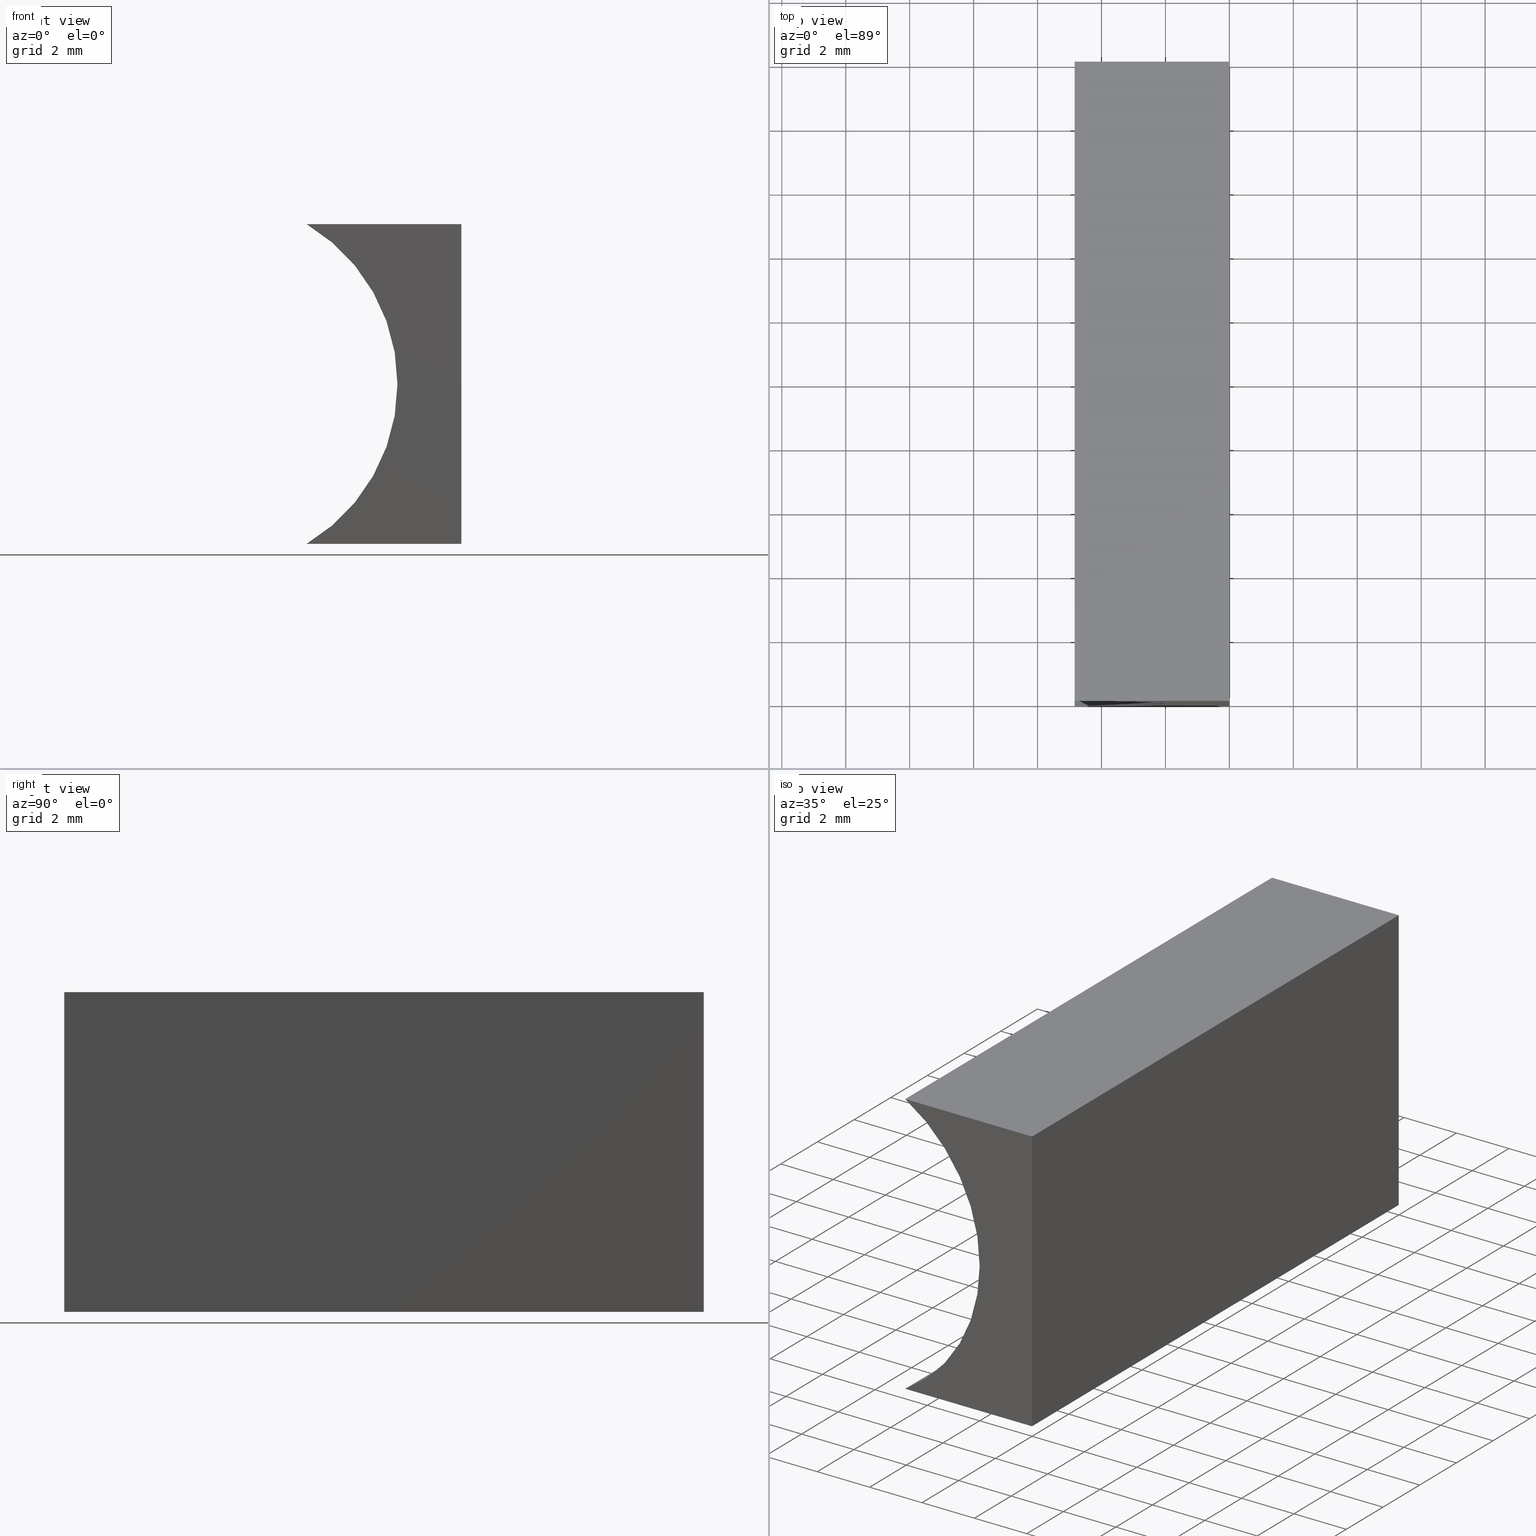
[diagram: canonical four-view strip — front | top / right | iso, engineering-drawing reading convention]
A machine part, canonical four-view strip (front | top / right | iso — engineering-drawing reading convention). The complete STEP part file that produces these views, byte-faithful:
ISO-10303-21;
HEADER;
FILE_DESCRIPTION (( 'STEP AP214' ),
    '1' );
FILE_NAME ('155475.STEP',
    '2019-07-03T07:11:49',
    ( 'user' ),
    ( '΢���й�' ),
    'SwSTEP 2.0',
    'SolidWorks 2016',
    '' );
FILE_SCHEMA (( 'AUTOMOTIVE_DESIGN' ));
ENDSEC;

DATA;
#1 = VECTOR ( 'NONE', #171, 1000.000000000000000 ) ;
#2 = ORIENTED_EDGE ( 'NONE', *, *, #113, .T. ) ;
#3 = DIRECTION ( 'NONE',  ( 0.0000000000000000000, 1.000000000000000000, 0.0000000000000000000 ) ) ;
#4 = LINE ( 'NONE', #170, #13 ) ;
#5 =( NAMED_UNIT ( * ) SI_UNIT ( $, .STERADIAN. ) SOLID_ANGLE_UNIT ( ) );
#6 = APPLICATION_CONTEXT ( 'automotive_design' ) ;
#7 = DIRECTION ( 'NONE',  ( 0.0000000000000000000, 1.000000000000000000, 0.0000000000000000000 ) ) ;
#8 = MECHANICAL_DESIGN_GEOMETRIC_PRESENTATION_REPRESENTATION (  '', ( #20 ), #145 ) ;
#9 = ADVANCED_FACE ( 'NONE', ( #175 ), #50, .F. ) ;
#10 = FACE_OUTER_BOUND ( 'NONE', #147, .T. ) ;
#11 = DIRECTION ( 'NONE',  ( -0.0000000000000000000, -1.000000000000000000, -0.0000000000000000000 ) ) ;
#12 = DIRECTION ( 'NONE',  ( -0.0000000000000000000, -1.000000000000000000, -0.0000000000000000000 ) ) ;
#13 = VECTOR ( 'NONE', #94, 1000.000000000000000 ) ;
#14 = EDGE_CURVE ( 'NONE', #24, #46, #174, .T. ) ;
#15 = AXIS2_PLACEMENT_3D ( 'NONE', #132, #7, #120 ) ;
#16 = EDGE_LOOP ( 'NONE', ( #139, #202, #199, #27 ) ) ;
#17 = ORIENTED_EDGE ( 'NONE', *, *, #48, .F. ) ;
#18 =( LENGTH_UNIT ( ) NAMED_UNIT ( * ) SI_UNIT ( .MILLI., .METRE. ) );
#19 = PRODUCT_DEFINITION_CONTEXT ( 'detailed design', #6, 'design' ) ;
#20 = STYLED_ITEM ( 'NONE', ( #129 ), #191 ) ;
#21 = VERTEX_POINT ( 'NONE', #65 ) ;
#22 = CARTESIAN_POINT ( 'NONE',  ( -7.819999999999993200, 20.00000000000000000, 5.000000000000001800 ) ) ;
#23 = ORIENTED_EDGE ( 'NONE', *, *, #73, .T. ) ;
#24 = VERTEX_POINT ( 'NONE', #78 ) ;
#25 = CARTESIAN_POINT ( 'NONE',  ( 6.123233995736766300E-016, 0.0000000000000000000, 10.00000000000000000 ) ) ;
#26 = DIRECTION ( 'NONE',  ( 0.0000000000000000000, 0.0000000000000000000, -1.000000000000000000 ) ) ;
#27 = ORIENTED_EDGE ( 'NONE', *, *, #130, .T. ) ;
#28 = AXIS2_PLACEMENT_3D ( 'NONE', #176, #82, #39 ) ;
#29 =( NAMED_UNIT ( * ) PLANE_ANGLE_UNIT ( ) SI_UNIT ( $, .RADIAN. ) );
#30 = DIRECTION ( 'NONE',  ( -1.000000000000000000, 0.0000000000000000000, -3.583145472076385500E-016 ) ) ;
#31 = DIRECTION ( 'NONE',  ( -6.123233995736766000E-017, -0.0000000000000000000, -1.000000000000000000 ) ) ;
#32 = CARTESIAN_POINT ( 'NONE',  ( 6.123233995736766300E-016, 20.00000000000000000, 10.00000000000000000 ) ) ;
#33 = COLOUR_RGB ( '',1.000000000000000000, 1.000000000000000000, 1.000000000000000000 ) ;
#34 = FILL_AREA_STYLE ('',( #164 ) ) ;
#35 = AXIS2_PLACEMENT_3D ( 'NONE', #192, #12, #26 ) ;
#36 = ORIENTED_EDGE ( 'NONE', *, *, #63, .T. ) ;
#37 = PRESENTATION_LAYER_ASSIGNMENT (  '', '', ( #20 ) ) ;
#38 = DIRECTION ( 'NONE',  ( 0.0000000000000000000, 0.0000000000000000000, 1.000000000000000000 ) ) ;
#39 = DIRECTION ( 'NONE',  ( 0.0000000000000000000, 0.0000000000000000000, 1.000000000000000000 ) ) ;
#40 = ADVANCED_FACE ( 'NONE', ( #43 ), #75, .F. ) ;
#41 =( GEOMETRIC_REPRESENTATION_CONTEXT ( 3 ) GLOBAL_UNCERTAINTY_ASSIGNED_CONTEXT ( ( #45 ) ) GLOBAL_UNIT_ASSIGNED_CONTEXT ( ( #146, #74, #67 ) ) REPRESENTATION_CONTEXT ( 'NONE', 'WORKASPACE' ) );
#42 = AXIS2_PLACEMENT_3D ( 'NONE', #71, #3, #185 ) ;
#43 = FACE_OUTER_BOUND ( 'NONE', #16, .T. ) ;
#44 = PRODUCT_DEFINITION_FORMATION_WITH_SPECIFIED_SOURCE ( '�κ�', '', #167, .NOT_KNOWN. ) ;
#45 = UNCERTAINTY_MEASURE_WITH_UNIT (LENGTH_MEASURE( 1.000000000000000100E-005 ), #146, 'distance_accuracy_value', 'NONE');
#46 = VERTEX_POINT ( 'NONE', #25 ) ;
#47 = LINE ( 'NONE', #32, #168 ) ;
#48 = EDGE_CURVE ( 'NONE', #118, #46, #47, .T. ) ;
#49 = LINE ( 'NONE', #204, #159 ) ;
#50 = PLANE ( 'NONE',  #187 ) ;
#51 = ORIENTED_EDGE ( 'NONE', *, *, #63, .F. ) ;
#52 = PRODUCT_DEFINITION_SHAPE ( 'NONE', 'NONE',  #179 ) ;
#53 = ORIENTED_EDGE ( 'NONE', *, *, #135, .T. ) ;
#54 = UNCERTAINTY_MEASURE_WITH_UNIT (LENGTH_MEASURE( 1.000000000000000100E-005 ), #18, 'distance_accuracy_value', 'NONE');
#55 = CARTESIAN_POINT ( 'NONE',  ( 6.123233995736766300E-016, 20.00000000000000000, 10.00000000000000000 ) ) ;
#56 = PLANE ( 'NONE',  #42 ) ;
#57 = LINE ( 'NONE', #186, #1 ) ;
#58 = EDGE_CURVE ( 'NONE', #118, #21, #4, .T. ) ;
#59 = DIRECTION ( 'NONE',  ( -0.0000000000000000000, -1.000000000000000000, -0.0000000000000000000 ) ) ;
#60 = DIRECTION ( 'NONE',  ( -0.0000000000000000000, -1.000000000000000000, -0.0000000000000000000 ) ) ;
#61 = PRODUCT_RELATED_PRODUCT_CATEGORY ( 'part', '', ( #167 ) ) ;
#62 = ADVANCED_FACE ( 'NONE', ( #85 ), #154, .T. ) ;
#63 = EDGE_CURVE ( 'NONE', #169, #165, #188, .T. ) ;
#64 = VECTOR ( 'NONE', #31, 1000.000000000000000 ) ;
#65 = CARTESIAN_POINT ( 'NONE',  ( 0.0000000000000000000, 20.00000000000000000, 0.0000000000000000000 ) ) ;
#66 = SURFACE_STYLE_FILL_AREA ( #34 ) ;
#67 =( NAMED_UNIT ( * ) SI_UNIT ( $, .STERADIAN. ) SOLID_ANGLE_UNIT ( ) );
#68 = DIRECTION ( 'NONE',  ( 1.000000000000000000, 0.0000000000000000000, 0.0000000000000000000 ) ) ;
#69 = DIRECTION ( 'NONE',  ( 3.583145472076385500E-016, 0.0000000000000000000, -1.000000000000000000 ) ) ;
#70 = ORIENTED_EDGE ( 'NONE', *, *, #14, .F. ) ;
#71 = CARTESIAN_POINT ( 'NONE',  ( -7.819999999999993200, 0.0000000000000000000, 5.000000000000001800 ) ) ;
#72 = DIRECTION ( 'NONE',  ( -0.0000000000000000000, -1.000000000000000000, -0.0000000000000000000 ) ) ;
#73 = EDGE_CURVE ( 'NONE', #169, #76, #93, .T. ) ;
#74 =( NAMED_UNIT ( * ) PLANE_ANGLE_UNIT ( ) SI_UNIT ( $, .RADIAN. ) );
#75 = PLANE ( 'NONE',  #178 ) ;
#76 = VERTEX_POINT ( 'NONE', #166 ) ;
#77 = FACE_OUTER_BOUND ( 'NONE', #115, .T. ) ;
#78 = CARTESIAN_POINT ( 'NONE',  ( -4.841342584317565000, 0.0000000000000000000, 9.999999999999998200 ) ) ;
#79 = ORIENTED_EDGE ( 'NONE', *, *, #58, .T. ) ;
#80 = AXIS2_PLACEMENT_3D ( 'NONE', #108, #69, #30 ) ;
#81 = CARTESIAN_POINT ( 'NONE',  ( 0.0000000000000000000, 0.0000000000000000000, 0.0000000000000000000 ) ) ;
#82 = DIRECTION ( 'NONE',  ( -0.0000000000000000000, -1.000000000000000000, -0.0000000000000000000 ) ) ;
#83 = DIRECTION ( 'NONE',  ( 3.583145472076385500E-016, -0.0000000000000000000, 1.000000000000000000 ) ) ;
#84 = CARTESIAN_POINT ( 'NONE',  ( -4.841342584317566800, 20.00000000000000000, 2.602085213965210600E-015 ) ) ;
#85 = FACE_OUTER_BOUND ( 'NONE', #133, .T. ) ;
#86 = CARTESIAN_POINT ( 'NONE',  ( 0.0000000000000000000, 20.00000000000000000, 0.0000000000000000000 ) ) ;
#87 = CIRCLE ( 'NONE', #28, 5.819999999999991400 ) ;
#88 = CARTESIAN_POINT ( 'NONE',  ( 0.0000000000000000000, 20.00000000000000000, 0.0000000000000000000 ) ) ;
#89 = LINE ( 'NONE', #55, #177 ) ;
#90 = EDGE_LOOP ( 'NONE', ( #156, #114, #70, #111 ) ) ;
#91 = DIRECTION ( 'NONE',  ( 1.000000000000000000, -0.0000000000000000000, 3.583145472076385000E-016 ) ) ;
#92 = CARTESIAN_POINT ( 'NONE',  ( 6.123233995736766300E-016, 20.00000000000000000, 10.00000000000000000 ) ) ;
#93 = LINE ( 'NONE', #163, #144 ) ;
#94 = DIRECTION ( 'NONE',  ( -6.123233995736766000E-017, -0.0000000000000000000, -1.000000000000000000 ) ) ;
#95 = ORIENTED_EDGE ( 'NONE', *, *, #142, .T. ) ;
#96 = CARTESIAN_POINT ( 'NONE',  ( -4.841342584317565000, 20.00000000000000000, 9.999999999999998200 ) ) ;
#97 = SURFACE_SIDE_STYLE ('',( #66 ) ) ;
#98 = CLOSED_SHELL ( 'NONE', ( #40, #127, #197, #9, #62, #143 ) ) ;
#99 = ORIENTED_EDGE ( 'NONE', *, *, #58, .F. ) ;
#100 = APPLICATION_PROTOCOL_DEFINITION ( 'draft international standard', 'automotive_design', 1998, #6 ) ;
#101 = PLANE ( 'NONE',  #80 ) ;
#102 = STYLED_ITEM ( 'NONE', ( #148 ), #150 ) ;
#103 = ORIENTED_EDGE ( 'NONE', *, *, #119, .F. ) ;
#104 = DIRECTION ( 'NONE',  ( -1.000000000000000000, 0.0000000000000000000, 3.583145472076385000E-016 ) ) ;
#105 = PRESENTATION_LAYER_ASSIGNMENT (  '', '', ( #102 ) ) ;
#106 = SURFACE_STYLE_USAGE ( .BOTH. , #128 ) ;
#107 = FILL_AREA_STYLE_COLOUR ( '', #161 ) ;
#108 = CARTESIAN_POINT ( 'NONE',  ( 6.123233995736766300E-016, 20.00000000000000000, 10.00000000000000000 ) ) ;
#109 = UNCERTAINTY_MEASURE_WITH_UNIT (LENGTH_MEASURE( 1.000000000000000100E-005 ), #183, 'distance_accuracy_value', 'NONE');
#110 = DIRECTION ( 'NONE',  ( -0.0000000000000000000, -1.000000000000000000, -0.0000000000000000000 ) ) ;
#111 = ORIENTED_EDGE ( 'NONE', *, *, #113, .F. ) ;
#112 = VECTOR ( 'NONE', #59, 1000.000000000000000 ) ;
#113 = EDGE_CURVE ( 'NONE', #76, #24, #87, .T. ) ;
#114 = ORIENTED_EDGE ( 'NONE', *, *, #157, .F. ) ;
#115 = EDGE_LOOP ( 'NONE', ( #117, #17, #103, #53 ) ) ;
#116 = CARTESIAN_POINT ( 'NONE',  ( 0.0000000000000000000, 0.0000000000000000000, 0.0000000000000000000 ) ) ;
#117 = ORIENTED_EDGE ( 'NONE', *, *, #14, .T. ) ;
#118 = VERTEX_POINT ( 'NONE', #92 ) ;
#119 = EDGE_CURVE ( 'NONE', #165, #118, #89, .T. ) ;
#120 = DIRECTION ( 'NONE',  ( 0.0000000000000000000, -0.0000000000000000000, 1.000000000000000000 ) ) ;
#121 = CARTESIAN_POINT ( 'NONE',  ( 0.0000000000000000000, 0.0000000000000000000, 0.0000000000000000000 ) ) ;
#122 =( NAMED_UNIT ( * ) SI_UNIT ( $, .STERADIAN. ) SOLID_ANGLE_UNIT ( ) );
#123 = CARTESIAN_POINT ( 'NONE',  ( 6.123233995736766300E-016, 0.0000000000000000000, 10.00000000000000000 ) ) ;
#124 = DIRECTION ( 'NONE',  ( 1.000000000000000000, -0.0000000000000000000, 3.583145472076385000E-016 ) ) ;
#125 = EDGE_CURVE ( 'NONE', #201, #76, #57, .T. ) ;
#126 = APPLICATION_CONTEXT ( 'automotive_design' ) ;
#127 = ADVANCED_FACE ( 'NONE', ( #10 ), #181, .F. ) ;
#128 = SURFACE_SIDE_STYLE ('',( #196 ) ) ;
#129 = PRESENTATION_STYLE_ASSIGNMENT (( #158 ) ) ;
#130 = EDGE_CURVE ( 'NONE', #21, #201, #134, .T. ) ;
#131 = DIRECTION ( 'NONE',  ( -1.000000000000000000, 0.0000000000000000000, 6.123233995736766000E-017 ) ) ;
#132 = CARTESIAN_POINT ( 'NONE',  ( -7.819999999999993200, 20.00000000000000000, 5.000000000000001800 ) ) ;
#133 = EDGE_LOOP ( 'NONE', ( #95, #36, #160, #79 ) ) ;
#134 = LINE ( 'NONE', #151, #138 ) ;
#135 = EDGE_CURVE ( 'NONE', #165, #24, #200, .T. ) ;
#136 = ORIENTED_EDGE ( 'NONE', *, *, #135, .F. ) ;
#137 = DIRECTION ( 'NONE',  ( 6.123233995736766000E-017, 0.0000000000000000000, 1.000000000000000000 ) ) ;
#138 = VECTOR ( 'NONE', #60, 1000.000000000000000 ) ;
#139 = ORIENTED_EDGE ( 'NONE', *, *, #125, .T. ) ;
#140 = MECHANICAL_DESIGN_GEOMETRIC_PRESENTATION_REPRESENTATION (  '', ( #102 ), #41 ) ;
#141 = FILL_AREA_STYLE ('',( #107 ) ) ;
#142 = EDGE_CURVE ( 'NONE', #21, #169, #49, .T. ) ;
#143 = ADVANCED_FACE ( 'NONE', ( #180 ), #56, .F. ) ;
#144 = VECTOR ( 'NONE', #72, 1000.000000000000000 ) ;
#145 =( GEOMETRIC_REPRESENTATION_CONTEXT ( 3 ) GLOBAL_UNCERTAINTY_ASSIGNED_CONTEXT ( ( #109 ) ) GLOBAL_UNIT_ASSIGNED_CONTEXT ( ( #183, #29, #122 ) ) REPRESENTATION_CONTEXT ( 'NONE', 'WORKASPACE' ) );
#146 =( LENGTH_UNIT ( ) NAMED_UNIT ( * ) SI_UNIT ( .MILLI., .METRE. ) );
#147 = EDGE_LOOP ( 'NONE', ( #2, #136, #51, #23 ) ) ;
#148 = PRESENTATION_STYLE_ASSIGNMENT (( #106 ) ) ;
#149 = DIRECTION ( 'NONE',  ( 0.0000000000000000000, 0.0000000000000000000, 1.000000000000000000 ) ) ;
#150 = ADVANCED_BREP_SHAPE_REPRESENTATION ( '155475', ( #191, #194 ), #162 ) ;
#151 = CARTESIAN_POINT ( 'NONE',  ( 0.0000000000000000000, 20.00000000000000000, 0.0000000000000000000 ) ) ;
#152 = LINE ( 'NONE', #121, #64 ) ;
#153 = EDGE_LOOP ( 'NONE', ( #195, #198, #99, #182 ) ) ;
#154 = PLANE ( 'NONE',  #15 ) ;
#155 =( NAMED_UNIT ( * ) PLANE_ANGLE_UNIT ( ) SI_UNIT ( $, .RADIAN. ) );
#156 = ORIENTED_EDGE ( 'NONE', *, *, #125, .F. ) ;
#157 = EDGE_CURVE ( 'NONE', #46, #201, #152, .T. ) ;
#158 = SURFACE_STYLE_USAGE ( .BOTH. , #97 ) ;
#159 = VECTOR ( 'NONE', #104, 1000.000000000000000 ) ;
#160 = ORIENTED_EDGE ( 'NONE', *, *, #119, .T. ) ;
#161 = COLOUR_RGB ( '',1.000000000000000000, 1.000000000000000000, 1.000000000000000000 ) ;
#162 =( GEOMETRIC_REPRESENTATION_CONTEXT ( 3 ) GLOBAL_UNCERTAINTY_ASSIGNED_CONTEXT ( ( #54 ) ) GLOBAL_UNIT_ASSIGNED_CONTEXT ( ( #18, #155, #5 ) ) REPRESENTATION_CONTEXT ( 'NONE', 'WORKASPACE' ) );
#163 = CARTESIAN_POINT ( 'NONE',  ( -4.841342584317566800, 20.00000000000000000, 2.602085213965210600E-015 ) ) ;
#164 = FILL_AREA_STYLE_COLOUR ( '', #33 ) ;
#165 = VERTEX_POINT ( 'NONE', #96 ) ;
#166 = CARTESIAN_POINT ( 'NONE',  ( -4.841342584317566800, 0.0000000000000000000, 2.602085213965210600E-015 ) ) ;
#167 = PRODUCT ( '155475', '155475', '', ( #189 ) ) ;
#168 = VECTOR ( 'NONE', #110, 1000.000000000000000 ) ;
#169 = VERTEX_POINT ( 'NONE', #84 ) ;
#170 = CARTESIAN_POINT ( 'NONE',  ( 0.0000000000000000000, 20.00000000000000000, 0.0000000000000000000 ) ) ;
#171 = DIRECTION ( 'NONE',  ( -1.000000000000000000, 0.0000000000000000000, 3.583145472076385000E-016 ) ) ;
#172 = CARTESIAN_POINT ( 'NONE',  ( -4.841342584317565000, 20.00000000000000000, 9.999999999999998200 ) ) ;
#173 = VECTOR ( 'NONE', #91, 1000.000000000000000 ) ;
#174 = LINE ( 'NONE', #123, #173 ) ;
#175 = FACE_OUTER_BOUND ( 'NONE', #153, .T. ) ;
#176 = CARTESIAN_POINT ( 'NONE',  ( -7.819999999999993200, 0.0000000000000000000, 5.000000000000001800 ) ) ;
#177 = VECTOR ( 'NONE', #124, 1000.000000000000000 ) ;
#178 = AXIS2_PLACEMENT_3D ( 'NONE', #86, #83, #203 ) ;
#179 = PRODUCT_DEFINITION ( 'δ֪', '', #44, #19 ) ;
#180 = FACE_OUTER_BOUND ( 'NONE', #90, .T. ) ;
#181 = CYLINDRICAL_SURFACE ( 'NONE', #35, 5.819999999999991400 ) ;
#182 = ORIENTED_EDGE ( 'NONE', *, *, #48, .T. ) ;
#183 =( LENGTH_UNIT ( ) NAMED_UNIT ( * ) SI_UNIT ( .MILLI., .METRE. ) );
#184 = APPLICATION_PROTOCOL_DEFINITION ( 'draft international standard', 'automotive_design', 1998, #126 ) ;
#185 = DIRECTION ( 'NONE',  ( 0.0000000000000000000, -0.0000000000000000000, 1.000000000000000000 ) ) ;
#186 = CARTESIAN_POINT ( 'NONE',  ( 0.0000000000000000000, 0.0000000000000000000, 0.0000000000000000000 ) ) ;
#187 = AXIS2_PLACEMENT_3D ( 'NONE', #88, #131, #137 ) ;
#188 = CIRCLE ( 'NONE', #190, 5.819999999999991400 ) ;
#189 = PRODUCT_CONTEXT ( 'NONE', #126, 'mechanical' ) ;
#190 = AXIS2_PLACEMENT_3D ( 'NONE', #22, #11, #38 ) ;
#191 = MANIFOLD_SOLID_BREP ( '͹̨-����1', #98 ) ;
#192 = CARTESIAN_POINT ( 'NONE',  ( -7.819999999999993200, 20.00000000000000000, 5.000000000000001800 ) ) ;
#193 = SHAPE_DEFINITION_REPRESENTATION ( #52, #150 ) ;
#194 = AXIS2_PLACEMENT_3D ( 'NONE', #81, #149, #68 ) ;
#195 = ORIENTED_EDGE ( 'NONE', *, *, #157, .T. ) ;
#196 = SURFACE_STYLE_FILL_AREA ( #141 ) ;
#197 = ADVANCED_FACE ( 'NONE', ( #77 ), #101, .F. ) ;
#198 = ORIENTED_EDGE ( 'NONE', *, *, #130, .F. ) ;
#199 = ORIENTED_EDGE ( 'NONE', *, *, #142, .F. ) ;
#200 = LINE ( 'NONE', #172, #112 ) ;
#201 = VERTEX_POINT ( 'NONE', #116 ) ;
#202 = ORIENTED_EDGE ( 'NONE', *, *, #73, .F. ) ;
#203 = DIRECTION ( 'NONE',  ( 1.000000000000000000, 0.0000000000000000000, -3.583145472076385500E-016 ) ) ;
#204 = CARTESIAN_POINT ( 'NONE',  ( 0.0000000000000000000, 20.00000000000000000, 0.0000000000000000000 ) ) ;
ENDSEC;
END-ISO-10303-21;
